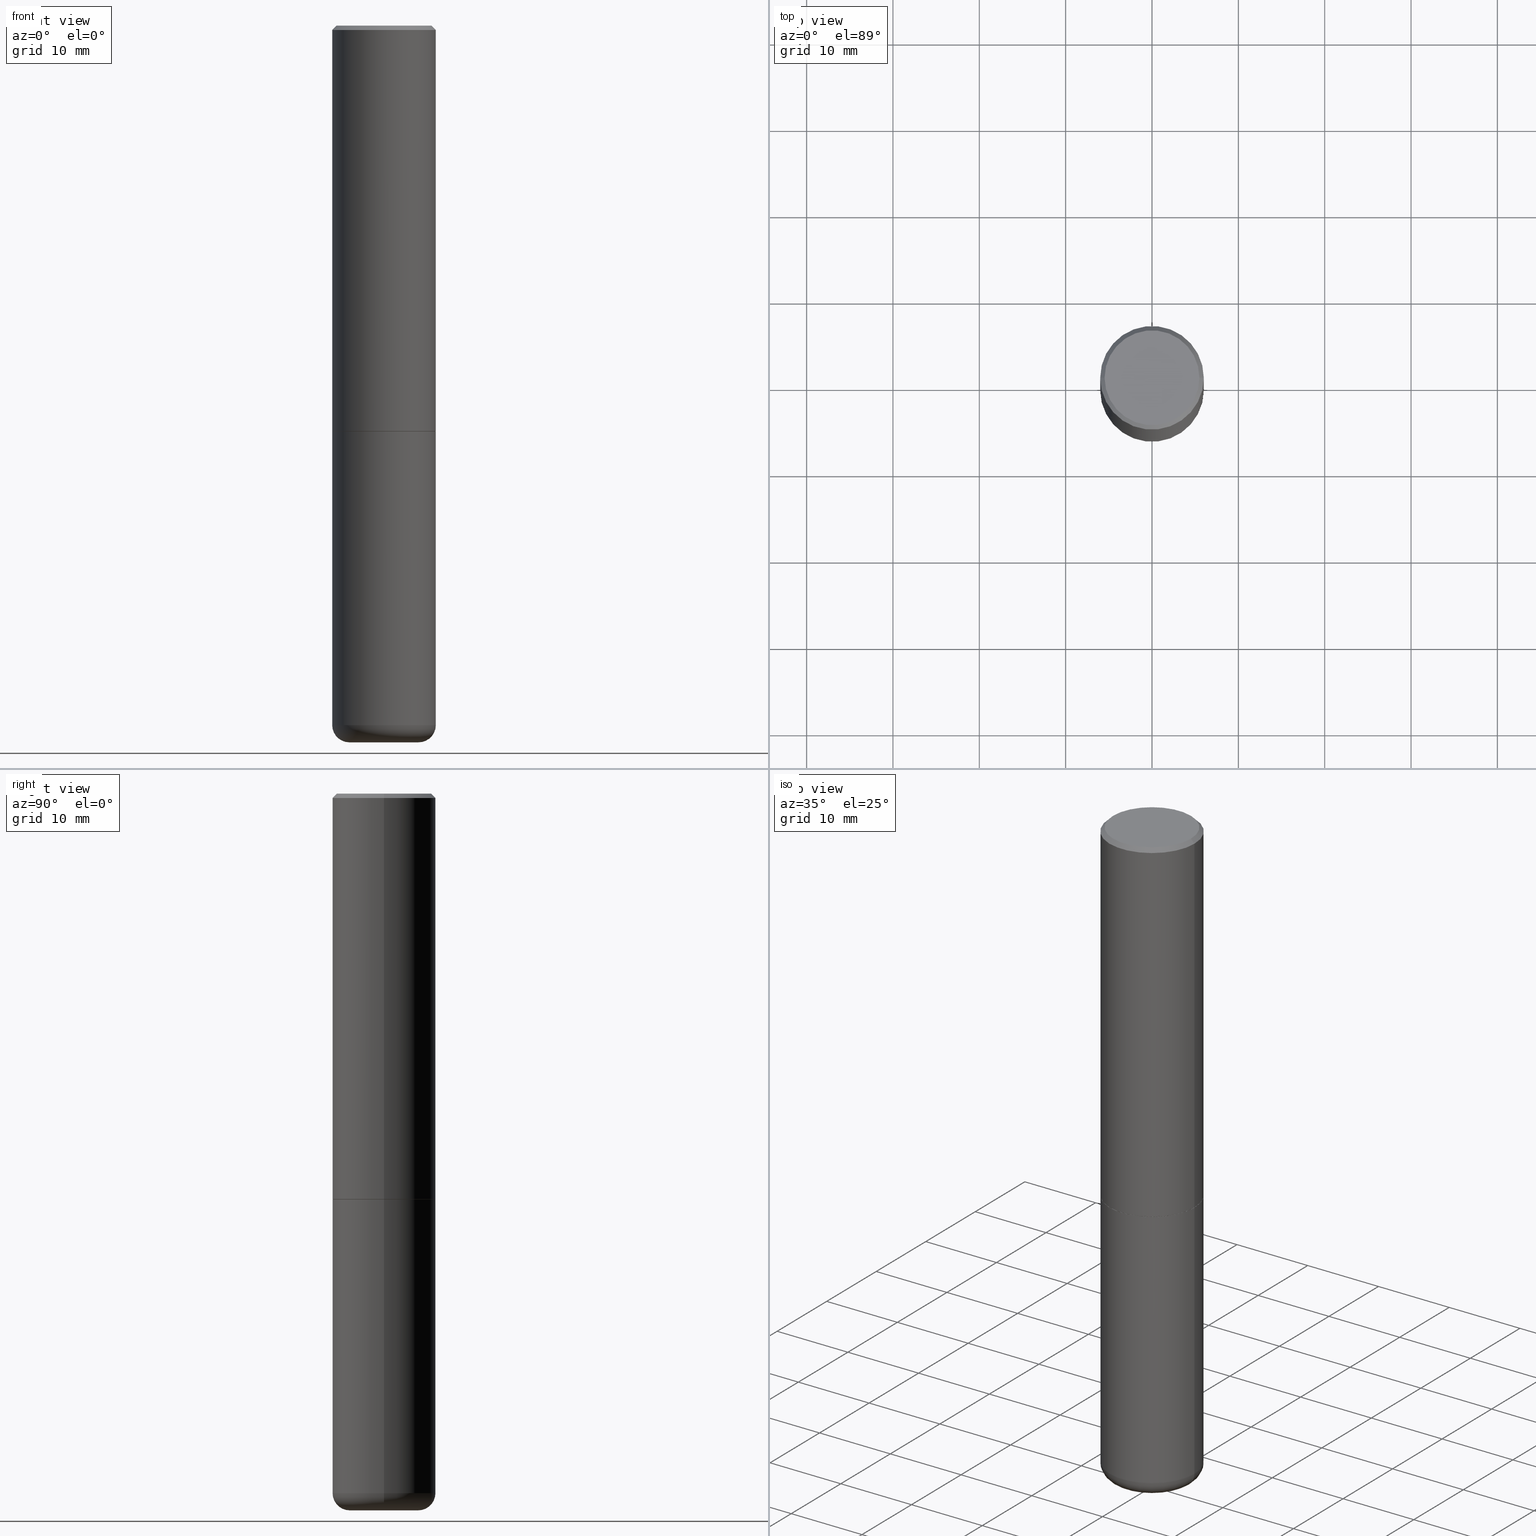
[diagram: canonical four-view strip — front | top / right | iso, engineering-drawing reading convention]
A machine part, canonical four-view strip (front | top / right | iso — engineering-drawing reading convention). The complete STEP part file that produces these views, byte-faithful:
ISO-10303-21;
HEADER;
FILE_DESCRIPTION (( 'STEP AP203' ),
    '1' );
FILE_NAME ('74705.STEP',
    '2024-05-02T19:14:25',
    ( '' ),
    ( '' ),
    'SwSTEP 2.0',
    'SolidWorks 2023',
    '' );
FILE_SCHEMA (( 'CONFIG_CONTROL_DESIGN' ));
ENDSEC;

DATA;
#1 = ORIENTED_EDGE ( 'NONE', *, *, #175, .F. ) ;
#2 = ADVANCED_FACE ( 'NONE', ( #153 ), #278, .T. ) ;
#3 = VERTEX_POINT ( 'NONE', #355 ) ;
#4 = CIRCLE ( 'NONE', #230, 0.07869999999999993667 ) ;
#5 = DIRECTION ( 'NONE',  ( -2.445468806185136597E-29, 3.491481338843145583E-15, 1.000000000000000000 ) ) ;
#6 = CARTESIAN_POINT ( 'NONE',  ( 4.890937612370285420E-31, -6.982962677686308865E-17, -0.02000000000000005246 ) ) ;
#7 = PLANE ( 'NONE',  #177 ) ;
#8 = AXIS2_PLACEMENT_3D ( 'NONE', #159, #357, #162 ) ;
#9 = CARTESIAN_POINT ( 'NONE',  ( 4.522650010158792351E-29, -6.457145588056513780E-15, -1.849400000000000155 ) ) ;
#10 = CC_DESIGN_PERSON_AND_ORGANIZATION_ASSIGNMENT ( #169, #26, ( #120 ) ) ;
#11 = DIRECTION ( 'NONE',  ( 2.438088387897960049E-29, -3.491481338843145188E-15, -1.000000000000000000 ) ) ;
#12 = LINE ( 'NONE', #210, #63 ) ;
#13 = CARTESIAN_POINT ( 'NONE',  ( 7.991058417971171713E-29, -1.140911357093774644E-14, -3.267700000000000049 ) ) ;
#14 = DIRECTION ( 'NONE',  ( 1.000000000000000000, -6.982962677686264344E-15, 0.000000000000000000 ) ) ;
#15 = FACE_OUTER_BOUND ( 'NONE', #376, .T. ) ;
#16 = ADVANCED_FACE ( 'NONE', ( #250 ), #98, .T. ) ;
#17 = AXIS2_PLACEMENT_3D ( 'NONE', #203, #81, #338 ) ;
#18 = APPROVAL_ROLE ( '' ) ;
#19 = DIRECTION ( 'NONE',  ( -2.445468806185136597E-29, 3.491481338843145583E-15, 1.000000000000000000 ) ) ;
#20 = CARTESIAN_POINT ( 'NONE',  ( 4.525095478964977394E-29, -6.460637069395357576E-15, -1.850400000000000267 ) ) ;
#21 = COORDINATED_UNIVERSAL_TIME_OFFSET ( 5, 0, .BEHIND. ) ;
#22 = AXIS2_PLACEMENT_3D ( 'NONE', #299, #400, #103 ) ;
#23 = EDGE_LOOP ( 'NONE', ( #178, #269, #140, #277 ) ) ;
#24 = PERSON_AND_ORGANIZATION_ROLE ( 'design_supplier' ) ;
#25 = VERTEX_POINT ( 'NONE', #34 ) ;
#26 = PERSON_AND_ORGANIZATION_ROLE ( 'creator' ) ;
#27 = ORIENTED_EDGE ( 'NONE', *, *, #315, .F. ) ;
#28 = ADVANCED_FACE ( 'NONE', ( #186 ), #294, .F. ) ;
#29 = ORIENTED_EDGE ( 'NONE', *, *, #271, .T. ) ;
#30 = AXIS2_PLACEMENT_3D ( 'NONE', #20, #262, #235 ) ;
#31 = EDGE_CURVE ( 'NONE', #25, #275, #394, .T. ) ;
#32 = DIRECTION ( 'NONE',  ( 2.445468806185136597E-29, -3.491481338843145583E-15, -1.000000000000000000 ) ) ;
#33 = AXIS2_PLACEMENT_3D ( 'NONE', #165, #19, #14 ) ;
#34 = CARTESIAN_POINT ( 'NONE',  ( -0.2362000000000002431, -1.585185665551328595E-15, -1.849400000000000155 ) ) ;
#35 = EDGE_CURVE ( 'NONE', #123, #61, #201, .T. ) ;
#36 = DIRECTION ( 'NONE',  ( -2.445468806185136597E-29, 3.491481338843145583E-15, 1.000000000000000000 ) ) ;
#37 = CARTESIAN_POINT ( 'NONE',  ( 0.000000000000000000, 0.000000000000000000, 0.000000000000000000 ) ) ;
#38 = APPROVAL ( #261, 'UNSPECIFIED' ) ;
#39 = FACE_OUTER_BOUND ( 'NONE', #314, .T. ) ;
#40 = DIRECTION ( 'NONE',  ( 1.000000000000000000, -6.982962677686264344E-15, 0.000000000000000000 ) ) ;
#41 = CLOSED_SHELL ( 'NONE', ( #237, #2, #390, #126, #228, #96, #408, #50 ) ) ;
#42 = LINE ( 'NONE', #46, #193 ) ;
#43 = LINE ( 'NONE', #166, #182 ) ;
#44 = EDGE_CURVE ( 'NONE', #275, #25, #202, .T. ) ;
#45 = PERSON_AND_ORGANIZATION ( #86, #117 ) ;
#46 = CARTESIAN_POINT ( 'NONE',  ( -0.2351999999999999924, -4.789440554887602190E-15, -1.850400000000000267 ) ) ;
#47 = CARTESIAN_POINT ( 'NONE',  ( 0.2351999999999999924, -8.103029891187166509E-15, -1.850400000000000267 ) ) ;
#48 = COORDINATED_UNIVERSAL_TIME_OFFSET ( 5, 0, .BEHIND. ) ;
#49 =( CONVERSION_BASED_UNIT ( 'INCH', #106 ) LENGTH_UNIT ( ) NAMED_UNIT ( #290 ) );
#50 = ADVANCED_FACE ( 'NONE', ( #396 ), #7, .F. ) ;
#51 = EDGE_CURVE ( 'NONE', #79, #180, #4, .T. ) ;
#52 = EDGE_CURVE ( 'NONE', #62, #212, #284, .T. ) ;
#53 = DIRECTION ( 'NONE',  ( 0.7071067811865957564, -2.468850131082761932E-15, 0.7071067811864992780 ) ) ;
#54 = ORIENTED_EDGE ( 'NONE', *, *, #308, .T. ) ;
#55 = PERSON_AND_ORGANIZATION ( #86, #117 ) ;
#56 = AXIS2_PLACEMENT_3D ( 'NONE', #6, #127, #97 ) ;
#57 = ORIENTED_EDGE ( 'NONE', *, *, #112, .T. ) ;
#58 = APPROVAL_PERSON_ORGANIZATION ( #331, #38, #141 ) ;
#59 = EDGE_CURVE ( 'NONE', #263, #205, #358, .T. ) ;
#60 = VERTEX_POINT ( 'NONE', #318 ) ;
#61 = VERTEX_POINT ( 'NONE', #389 ) ;
#62 = VERTEX_POINT ( 'NONE', #221 ) ;
#63 = VECTOR ( 'NONE', #266, 39.37007874015748143 ) ;
#64 = ADVANCED_FACE ( 'NONE', ( #361 ), #325, .T. ) ;
#65 = CYLINDRICAL_SURFACE ( 'NONE', #402, 0.2361999999999999933 ) ;
#66 = DIRECTION ( 'NONE',  ( -1.000000000000000000, 6.982962677686266711E-15, 0.000000000000000000 ) ) ;
#67 = AXIS2_PLACEMENT_3D ( 'NONE', #339, #204, #172 ) ;
#68 = DIRECTION ( 'NONE',  ( 1.000000000000000000, -6.982962677686266711E-15, 0.000000000000000000 ) ) ;
#69 = CARTESIAN_POINT ( 'NONE',  ( 4.525095478964977394E-29, -6.460637069395357576E-15, -1.850400000000000267 ) ) ;
#70 = CARTESIAN_POINT ( 'NONE',  ( 7.991058417971171713E-29, -1.140911357093774644E-14, -3.267700000000000049 ) ) ;
#71 = CARTESIAN_POINT ( 'NONE',  ( -0.1575000000000000011, -1.001522918074863550E-14, -3.189000000000000501 ) ) ;
#72 = AXIS2_PLACEMENT_3D ( 'NONE', #13, #134, #257 ) ;
#73 = LOCAL_TIME ( 15, 14, 25.00000000000000000, #405 ) ;
#74 = EDGE_CURVE ( 'NONE', #205, #263, #142, .T. ) ;
#75 = CARTESIAN_POINT ( 'NONE',  ( 0.2361999999999999378, -1.690279253850498377E-15, -0.02000000000000005246 ) ) ;
#76 = DIRECTION ( 'NONE',  ( -1.000000000000000000, 6.982962677686266711E-15, 0.000000000000000000 ) ) ;
#77 = AXIS2_PLACEMENT_3D ( 'NONE', #69, #191, #324 ) ;
#78 = DIRECTION ( 'NONE',  ( -2.445468806185136597E-29, 3.491481338843145583E-15, 1.000000000000000000 ) ) ;
#79 = VERTEX_POINT ( 'NONE', #223 ) ;
#80 = ORIENTED_EDGE ( 'NONE', *, *, #315, .T. ) ;
#81 = DIRECTION ( 'NONE',  ( 0.000000000000000000, 0.000000000000000000, 1.000000000000000000 ) ) ;
#82 =( GEOMETRIC_REPRESENTATION_CONTEXT ( 3 ) GLOBAL_UNCERTAINTY_ASSIGNED_CONTEXT ( ( #187 ) ) GLOBAL_UNIT_ASSIGNED_CONTEXT ( ( #49, #137, #368 ) ) REPRESENTATION_CONTEXT ( 'NONE', 'WORKASPACE' ) );
#83 = ORIENTED_EDGE ( 'NONE', *, *, #387, .T. ) ;
#84 = DATE_TIME_ROLE ( 'creation_date' ) ;
#85 = ORIENTED_EDGE ( 'NONE', *, *, #133, .F. ) ;
#86 = PERSON ( 'UNSPECIFIED', 'UNSPECIFIED', 'UNSPECIFIED', ('UNSPECIFIED'), ('UNSPECIFIED'), ('UNSPECIFIED') ) ;
#87 = DIRECTION ( 'NONE',  ( -2.445468806185136597E-29, 3.491481338843145583E-15, 1.000000000000000000 ) ) ;
#88 = ORIENTED_EDGE ( 'NONE', *, *, #351, .F. ) ;
#89 = LINE ( 'NONE', #232, #292 ) ;
#90 = DATE_AND_TIME ( #386, #73 ) ;
#91 = AXIS2_PLACEMENT_3D ( 'NONE', #330, #196, #328 ) ;
#92 = AXIS2_PLACEMENT_3D ( 'NONE', #360, #87, #321 ) ;
#93 = DIRECTION ( 'NONE',  ( -2.445468806185136597E-29, 3.491481338843145583E-15, 1.000000000000000000 ) ) ;
#94 = CARTESIAN_POINT ( 'NONE',  ( 1.509716530915769140E-15, 0.2161999999999997535, -6.801592968811301598E-16 ) ) ;
#95 = DIRECTION ( 'NONE',  ( -2.445468806185136597E-29, 3.491481338843145583E-15, 1.000000000000000000 ) ) ;
#96 = ADVANCED_FACE ( 'NONE', ( #288 ), #183, .T. ) ;
#97 = DIRECTION ( 'NONE',  ( 1.000000000000000000, -6.982962677686266711E-15, 0.000000000000000000 ) ) ;
#98 = CYLINDRICAL_SURFACE ( 'NONE', #92, 0.2361999999999999933 ) ;
#99 = AXIS2_PLACEMENT_3D ( 'NONE', #246, #392, #121 ) ;
#100 = CARTESIAN_POINT ( 'NONE',  ( 4.890937612370285420E-31, -6.982962677686308865E-17, -0.02000000000000005246 ) ) ;
#101 = DIRECTION ( 'NONE',  ( 1.000000000000000000, -6.982962677686266711E-15, 4.883557194083113462E-29 ) ) ;
#102 = DIRECTION ( 'NONE',  ( -2.445468806185136877E-29, 3.491481338843145188E-15, 1.000000000000000000 ) ) ;
#103 = DIRECTION ( 'NONE',  ( 1.000000000000000000, -6.982962677686265922E-15, 4.876176775795935793E-29 ) ) ;
#104 = CIRCLE ( 'NONE', #8, 0.1575000000000000011 ) ;
#105 = AXIS2_PLACEMENT_3D ( 'NONE', #129, #251, #226 ) ;
#106 = LENGTH_MEASURE_WITH_UNIT ( LENGTH_MEASURE( 0.02539999999999999897 ), #406 );
#107 = DIRECTION ( 'NONE',  ( -2.445468806185136877E-29, 3.491481338843145188E-15, 1.000000000000000000 ) ) ;
#108 = CALENDAR_DATE ( 2024, 2, 5 ) ;
#109 = CARTESIAN_POINT ( 'NONE',  ( -0.2361999999999999655, -9.456032047705438285E-15, -3.189000000000000501 ) ) ;
#110 = CC_DESIGN_SECURITY_CLASSIFICATION ( #242, ( #176 ) ) ;
#111 = EDGE_LOOP ( 'NONE', ( #279, #341, #415, #88 ) ) ;
#112 = EDGE_CURVE ( 'NONE', #412, #60, #371, .T. ) ;
#113 = ORIENTED_EDGE ( 'NONE', *, *, #271, .F. ) ;
#114 = ADVANCED_FACE ( 'NONE', ( #322 ), #65, .T. ) ;
#115 = EDGE_LOOP ( 'NONE', ( #211, #343, #289, #244 ) ) ;
#116 = COORDINATED_UNIVERSAL_TIME_OFFSET ( 5, 0, .BEHIND. ) ;
#117 = ORGANIZATION ( 'UNSPECIFIED', 'UNSPECIFIED', '' ) ;
#118 = ORIENTED_EDGE ( 'NONE', *, *, #35, .F. ) ;
#119 = ORIENTED_EDGE ( 'NONE', *, *, #418, .T. ) ;
#120 = PRODUCT_DEFINITION ( 'UNKNOWN', '', #176, #311 ) ;
#121 = DIRECTION ( 'NONE',  ( -1.000000000000000000, 6.982962677686265922E-15, -4.876176775795935793E-29 ) ) ;
#122 = AXIS2_PLACEMENT_3D ( 'NONE', #407, #233, #369 ) ;
#123 = VERTEX_POINT ( 'NONE', #216 ) ;
#124 = FACE_OUTER_BOUND ( 'NONE', #377, .T. ) ;
#125 = ORIENTED_EDGE ( 'NONE', *, *, #317, .F. ) ;
#126 = ADVANCED_FACE ( 'NONE', ( #124 ), #334, .T. ) ;
#127 = DIRECTION ( 'NONE',  ( -2.445468806185136597E-29, 3.491481338843145583E-15, 1.000000000000000000 ) ) ;
#128 = CC_DESIGN_PERSON_AND_ORGANIZATION_ASSIGNMENT ( #55, #24, ( #176 ) ) ;
#129 = CARTESIAN_POINT ( 'NONE',  ( 4.525095478964977394E-29, -6.460637069395357576E-15, -1.850400000000000267 ) ) ;
#130 = AXIS2_PLACEMENT_3D ( 'NONE', #218, #192, #40 ) ;
#131 = CIRCLE ( 'NONE', #122, 0.2161999999999997535 ) ;
#132 = DIRECTION ( 'NONE',  ( -1.000000000000000000, 6.982962677686265922E-15, -4.876176775795935793E-29 ) ) ;
#133 = EDGE_CURVE ( 'NONE', #412, #79, #104, .T. ) ;
#134 = DIRECTION ( 'NONE',  ( -2.445468806185136597E-29, 3.491481338843145583E-15, 1.000000000000000000 ) ) ;
#135 = CIRCLE ( 'NONE', #258, 0.2361999999999999933 ) ;
#136 = CALENDAR_DATE ( 2024, 2, 5 ) ;
#137 =( NAMED_UNIT ( * ) PLANE_ANGLE_UNIT ( ) SI_UNIT ( $, .RADIAN. ) );
#138 = DATE_AND_TIME ( #179, #276 ) ;
#139 = CARTESIAN_POINT ( 'NONE',  ( 7.798600022924401307E-29, -1.113433398957079310E-14, -3.189000000000000501 ) ) ;
#140 = ORIENTED_EDGE ( 'NONE', *, *, #44, .F. ) ;
#141 = APPROVAL_ROLE ( '' ) ;
#142 = CIRCLE ( 'NONE', #281, 0.2361999999999999378 ) ;
#143 = EDGE_CURVE ( 'NONE', #60, #62, #291, .T. ) ;
#144 = ORIENTED_EDGE ( 'NONE', *, *, #274, .F. ) ;
#145 = SECURITY_CLASSIFICATION_LEVEL ( 'unclassified' ) ;
#146 = CC_DESIGN_PERSON_AND_ORGANIZATION_ASSIGNMENT ( #335, #372, ( #333 ) ) ;
#147 = MANIFOLD_SOLID_BREP ( 'Body-Move/Copy2[1]', #380 ) ;
#148 = ORIENTED_EDGE ( 'NONE', *, *, #52, .T. ) ;
#149 = DATE_AND_TIME ( #413, #253 ) ;
#150 = ORIENTED_EDGE ( 'NONE', *, *, #190, .T. ) ;
#151 = CIRCLE ( 'NONE', #379, 0.2361999999999999933 ) ;
#152 = ORIENTED_EDGE ( 'NONE', *, *, #340, .T. ) ;
#153 = FACE_OUTER_BOUND ( 'NONE', #209, .T. ) ;
#154 = ORIENTED_EDGE ( 'NONE', *, *, #59, .F. ) ;
#155 = DIRECTION ( 'NONE',  ( 2.438088387897960049E-29, -3.491481338843145188E-15, -1.000000000000000000 ) ) ;
#156 = DIRECTION ( 'NONE',  ( 1.000000000000000000, -6.982962677686266711E-15, 4.876176775795936353E-29 ) ) ;
#157 = ORIENTED_EDGE ( 'NONE', *, *, #143, .T. ) ;
#158 = DIRECTION ( 'NONE',  ( -1.000000000000000000, 7.105427357600997914E-15, 0.000000000000000000 ) ) ;
#159 = CARTESIAN_POINT ( 'NONE',  ( 7.991058417971171713E-29, -1.140911357093774644E-14, -3.267700000000000049 ) ) ;
#160 = VECTOR ( 'NONE', #53, 39.37007874015748143 ) ;
#161 = PLANE ( 'NONE',  #384 ) ;
#162 = DIRECTION ( 'NONE',  ( 1.000000000000000000, -6.982962677686261977E-15, 0.000000000000000000 ) ) ;
#163 = CC_DESIGN_DATE_AND_TIME_ASSIGNMENT ( #149, #241, ( #242 ) ) ;
#164 = PLANE ( 'NONE',  #22 ) ;
#165 = CARTESIAN_POINT ( 'NONE',  ( 4.525095478964977394E-29, -6.460637069395357576E-15, -1.850400000000000267 ) ) ;
#166 = CARTESIAN_POINT ( 'NONE',  ( 0.2361999999999999378, -1.690279253850498377E-15, -0.02000000000000005246 ) ) ;
#167 = DIRECTION ( 'NONE',  ( 1.000000000000000000, -6.982962677686265133E-15, 0.000000000000000000 ) ) ;
#168 = APPROVAL_PERSON_ORGANIZATION ( #344, #302, #199 ) ;
#169 = PERSON_AND_ORGANIZATION ( #86, #117 ) ;
#170 = DIRECTION ( 'NONE',  ( -2.445468806185136597E-29, 3.491481338843145583E-15, 1.000000000000000000 ) ) ;
#171 = CARTESIAN_POINT ( 'NONE',  ( 0.2161999999999997535, -1.586759460484350805E-15, 1.493979371535252139E-16 ) ) ;
#172 = DIRECTION ( 'NONE',  ( 1.000000000000000000, -6.982962677686265133E-15, 0.000000000000000000 ) ) ;
#173 = EDGE_LOOP ( 'NONE', ( #381, #304, #217, #215 ) ) ;
#174 = PERSON_AND_ORGANIZATION_ROLE ( 'creator' ) ;
#175 = EDGE_CURVE ( 'NONE', #272, #205, #43, .T. ) ;
#176 = PRODUCT_DEFINITION_FORMATION_WITH_SPECIFIED_SOURCE ( 'ANY', '', #333, .NOT_KNOWN. ) ;
#177 = AXIS2_PLACEMENT_3D ( 'NONE', #94, #155, #132 ) ;
#178 = ORIENTED_EDGE ( 'NONE', *, *, #274, .T. ) ;
#179 = CALENDAR_DATE ( 2024, 2, 5 ) ;
#180 = VERTEX_POINT ( 'NONE', #109 ) ;
#181 = ORIENTED_EDGE ( 'NONE', *, *, #351, .T. ) ;
#182 = VECTOR ( 'NONE', #337, 39.37007874015748143 ) ;
#183 = CONICAL_SURFACE ( 'NONE', #77, 0.2351999999999999924, 0.7853981633975165577 ) ;
#184 = ORIENTED_EDGE ( 'NONE', *, *, #190, .F. ) ;
#185 = CARTESIAN_POINT ( 'NONE',  ( 4.890937612370285420E-31, -6.982962677686308865E-17, -0.02000000000000005246 ) ) ;
#186 = FACE_OUTER_BOUND ( 'NONE', #348, .T. ) ;
#187 = UNCERTAINTY_MEASURE_WITH_UNIT (LENGTH_MEASURE( 1.000000000000000082E-05 ), #49, 'distance_accuracy_value', 'NONE');
#188 = AXIS2_PLACEMENT_3D ( 'NONE', #364, #170, #194 ) ;
#189 = DIRECTION ( 'NONE',  ( -2.445468806185136597E-29, 3.491481338843145583E-15, 1.000000000000000000 ) ) ;
#190 = EDGE_CURVE ( 'NONE', #212, #62, #151, .T. ) ;
#191 = DIRECTION ( 'NONE',  ( -2.445468806185136597E-29, 3.491481338843145583E-15, 1.000000000000000000 ) ) ;
#192 = DIRECTION ( 'NONE',  ( -2.445468806185136597E-29, 3.491481338843145583E-15, 1.000000000000000000 ) ) ;
#193 = VECTOR ( 'NONE', #297, 39.37007874015748143 ) ;
#194 = DIRECTION ( 'NONE',  ( 1.000000000000000000, -6.982962677686267499E-15, 4.881916136609867620E-29 ) ) ;
#195 = DIRECTION ( 'NONE',  ( -2.445468806185136877E-29, 3.491481338843145188E-15, 1.000000000000000000 ) ) ;
#196 = DIRECTION ( 'NONE',  ( -2.445468806185136597E-29, 3.491481338843145583E-15, 1.000000000000000000 ) ) ;
#197 = FACE_OUTER_BOUND ( 'NONE', #312, .T. ) ;
#198 = APPROVAL ( #298, 'UNSPECIFIED' ) ;
#199 = APPROVAL_ROLE ( '' ) ;
#200 = FACE_OUTER_BOUND ( 'NONE', #111, .T. ) ;
#201 = CIRCLE ( 'NONE', #130, 0.2351999999999999924 ) ;
#202 = CIRCLE ( 'NONE', #307, 0.2362000000000002153 ) ;
#203 = CARTESIAN_POINT ( 'NONE',  ( 0.000000000000000000, 0.000000000000000000, 0.000000000000000000 ) ) ;
#204 = DIRECTION ( 'NONE',  ( -2.445468806185136597E-29, 3.491481338843145583E-15, 1.000000000000000000 ) ) ;
#205 = VERTEX_POINT ( 'NONE', #75 ) ;
#206 = DATE_AND_TIME ( #108, #282 ) ;
#207 = EDGE_LOOP ( 'NONE', ( #54, #83, #374, #416 ) ) ;
#208 = AXIS2_PLACEMENT_3D ( 'NONE', #185, #32, #66 ) ;
#209 = EDGE_LOOP ( 'NONE', ( #240, #383, #236, #27 ) ) ;
#210 = CARTESIAN_POINT ( 'NONE',  ( 0.2362000000000000766, -1.649375784469496722E-15, 1.151752954443000368E-29 ) ) ;
#211 = ORIENTED_EDGE ( 'NONE', *, *, #397, .F. ) ;
#212 = VERTEX_POINT ( 'NONE', #296 ) ;
#213 = CONICAL_SURFACE ( 'NONE', #349, 0.2361999999999999378, 0.7853981633974473908 ) ;
#214 = CC_DESIGN_APPROVAL ( #198, ( #242 ) ) ;
#215 = ORIENTED_EDGE ( 'NONE', *, *, #112, .F. ) ;
#216 = CARTESIAN_POINT ( 'NONE',  ( -0.2351999999999999924, -4.784142100539378999E-15, -1.850400000000000267 ) ) ;
#217 = ORIENTED_EDGE ( 'NONE', *, *, #308, .F. ) ;
#218 = CARTESIAN_POINT ( 'NONE',  ( 4.525095478964977394E-29, -6.460637069395357576E-15, -1.850400000000000267 ) ) ;
#219 = SHAPE_DEFINITION_REPRESENTATION ( #313, #256 ) ;
#220 = DIRECTION ( 'NONE',  ( 1.000000000000000000, -6.982962677686266711E-15, 4.876176775795935793E-29 ) ) ;
#221 = CARTESIAN_POINT ( 'NONE',  ( 0.2361999999999999933, -8.110012853864854101E-15, -1.850400000000000267 ) ) ;
#222 = CC_DESIGN_APPROVAL ( #302, ( #120 ) ) ;
#223 = CARTESIAN_POINT ( 'NONE',  ( -0.1575000000000000011, -9.873020404910514350E-15, -3.267700000000000049 ) ) ;
#224 = EDGE_CURVE ( 'NONE', #61, #275, #301, .T. ) ;
#225 = CC_DESIGN_PERSON_AND_ORGANIZATION_ASSIGNMENT ( #45, #174, ( #176 ) ) ;
#226 = DIRECTION ( 'NONE',  ( 1.000000000000000000, -6.982962677686269077E-15, 0.000000000000000000 ) ) ;
#227 = CARTESIAN_POINT ( 'NONE',  ( 4.890937612370285420E-31, -6.982962677686308865E-17, -0.02000000000000005246 ) ) ;
#228 = ADVANCED_FACE ( 'NONE', ( #399 ), #231, .T. ) ;
#229 = TOROIDAL_SURFACE ( 'NONE', #410, 0.1575000000000000011, 0.07869999999999995055 ) ;
#230 = AXIS2_PLACEMENT_3D ( 'NONE', #71, #248, #158 ) ;
#231 = CYLINDRICAL_SURFACE ( 'NONE', #91, 0.2362000000000000766 ) ;
#232 = CARTESIAN_POINT ( 'NONE',  ( -0.2362000000000000766, 1.678301941865357183E-15, -1.161852468318209177E-29 ) ) ;
#233 = DIRECTION ( 'NONE',  ( -2.445468806185136597E-29, 3.491481338843145583E-15, 1.000000000000000000 ) ) ;
#234 = CIRCLE ( 'NONE', #67, 0.2361999999999999933 ) ;
#235 = DIRECTION ( 'NONE',  ( 1.000000000000000000, -6.982962677686264344E-15, 0.000000000000000000 ) ) ;
#236 = ORIENTED_EDGE ( 'NONE', *, *, #74, .F. ) ;
#237 = ADVANCED_FACE ( 'NONE', ( #300 ), #393, .T. ) ;
#238 = CC_DESIGN_DATE_AND_TIME_ASSIGNMENT ( #138, #84, ( #120 ) ) ;
#239 = EDGE_LOOP ( 'NONE', ( #316, #346, #157, #184 ) ) ;
#240 = ORIENTED_EDGE ( 'NONE', *, *, #44, .T. ) ;
#241 = DATE_TIME_ROLE ( 'classification_date' ) ;
#242 = SECURITY_CLASSIFICATION ( '', '', #145 ) ;
#243 = EDGE_LOOP ( 'NONE', ( #125, #411, #80, #154 ) ) ;
#244 = ORIENTED_EDGE ( 'NONE', *, *, #31, .F. ) ;
#245 = ORIENTED_EDGE ( 'NONE', *, *, #59, .T. ) ;
#246 = CARTESIAN_POINT ( 'NONE',  ( 4.525095478964977394E-29, -6.460637069395357576E-15, -1.850400000000000267 ) ) ;
#247 = CIRCLE ( 'NONE', #72, 0.1575000000000000011 ) ;
#248 = DIRECTION ( 'NONE',  ( 7.105427357601001859E-15, 1.000000000000000000, -3.491481338843145583E-15 ) ) ;
#249 = CARTESIAN_POINT ( 'NONE',  ( 7.798600022924401307E-29, -1.113433398957079310E-14, -3.189000000000000501 ) ) ;
#250 = FACE_OUTER_BOUND ( 'NONE', #207, .T. ) ;
#251 = DIRECTION ( 'NONE',  ( -2.445468806185136597E-29, 3.491481338843145583E-15, 1.000000000000000000 ) ) ;
#252 = CIRCLE ( 'NONE', #188, 0.2161999999999997535 ) ;
#253 = LOCAL_TIME ( 15, 14, 25.00000000000000000, #116 ) ;
#254 = CARTESIAN_POINT ( 'NONE',  ( 4.522650010158792351E-29, -6.457145588056513780E-15, -1.849400000000000155 ) ) ;
#255 = DIRECTION ( 'NONE',  ( -2.445468806185136597E-29, 3.491481338843145583E-15, 1.000000000000000000 ) ) ;
#256 = ADVANCED_BREP_SHAPE_REPRESENTATION ( '74705', ( #147, #285, #17 ), #82 ) ;
#257 = DIRECTION ( 'NONE',  ( 1.000000000000000000, -6.982962677686261977E-15, 0.000000000000000000 ) ) ;
#258 = AXIS2_PLACEMENT_3D ( 'NONE', #403, #336, #167 ) ;
#259 = APPROVAL_STATUS ( 'not_yet_approved' ) ;
#260 = CARTESIAN_POINT ( 'NONE',  ( -0.2361999999999999378, 1.579546157692632635E-15, -0.02000000000000005246 ) ) ;
#261 = APPROVAL_STATUS ( 'not_yet_approved' ) ;
#262 = DIRECTION ( 'NONE',  ( -2.445468806185136597E-29, 3.491481338843145583E-15, 1.000000000000000000 ) ) ;
#263 = VERTEX_POINT ( 'NONE', #260 ) ;
#264 = DATE_AND_TIME ( #136, #417 ) ;
#265 = VECTOR ( 'NONE', #102, 39.37007874015748143 ) ;
#266 = DIRECTION ( 'NONE',  ( -2.445468806185136877E-29, 3.491481338843145188E-15, 1.000000000000000000 ) ) ;
#267 = CC_DESIGN_PERSON_AND_ORGANIZATION_ASSIGNMENT ( #310, #270, ( #242 ) ) ;
#268 = AXIS2_PLACEMENT_3D ( 'NONE', #354, #95, #220 ) ;
#269 = ORIENTED_EDGE ( 'NONE', *, *, #397, .T. ) ;
#270 = PERSON_AND_ORGANIZATION_ROLE ( 'classification_officer' ) ;
#271 = EDGE_CURVE ( 'NONE', #3, #272, #131, .T. ) ;
#272 = VERTEX_POINT ( 'NONE', #171 ) ;
#273 = APPROVAL_DATE_TIME ( #206, #38 ) ;
#274 = EDGE_CURVE ( 'NONE', #61, #123, #365, .T. ) ;
#275 = VERTEX_POINT ( 'NONE', #373 ) ;
#276 = LOCAL_TIME ( 15, 14, 25.00000000000000000, #21 ) ;
#277 = ORIENTED_EDGE ( 'NONE', *, *, #224, .F. ) ;
#278 = CYLINDRICAL_SURFACE ( 'NONE', #268, 0.2362000000000000766 ) ;
#279 = ORIENTED_EDGE ( 'NONE', *, *, #340, .F. ) ;
#280 = CARTESIAN_POINT ( 'NONE',  ( 0.1575000000000000011, -1.223415061130637979E-14, -3.189000000000000501 ) ) ;
#281 = AXIS2_PLACEMENT_3D ( 'NONE', #100, #189, #363 ) ;
#282 = LOCAL_TIME ( 15, 14, 25.00000000000000000, #375 ) ;
#283 = EDGE_LOOP ( 'NONE', ( #29, #152 ) ) ;
#284 = CIRCLE ( 'NONE', #105, 0.2361999999999999933 ) ;
#285 = MANIFOLD_SOLID_BREP ( 'Body-Move/Copy2[2]', #41 ) ;
#286 = DIRECTION ( 'NONE',  ( -2.445468806185136597E-29, 3.491481338843145583E-15, 1.000000000000000000 ) ) ;
#287 = APPLICATION_PROTOCOL_DEFINITION ( 'international standard', 'config_control_design', 1994, #414 ) ;
#288 = FACE_OUTER_BOUND ( 'NONE', #115, .T. ) ;
#289 = ORIENTED_EDGE ( 'NONE', *, *, #224, .T. ) ;
#290 = DIMENSIONAL_EXPONENTS ( 1.000000000000000000, 0.000000000000000000, 0.000000000000000000, 0.000000000000000000, 0.000000000000000000, 0.000000000000000000, 0.000000000000000000 ) ;
#291 = LINE ( 'NONE', #319, #370 ) ;
#292 = VECTOR ( 'NONE', #195, 39.37007874015748143 ) ;
#293 = LINE ( 'NONE', #367, #345 ) ;
#294 = PLANE ( 'NONE',  #99 ) ;
#295 = CARTESIAN_POINT ( 'NONE',  ( 0.1575000000000000011, -1.250893019267333313E-14, -3.267700000000000049 ) ) ;
#296 = CARTESIAN_POINT ( 'NONE',  ( -0.2361999999999999933, -7.119183587617718156E-15, -1.850400000000000267 ) ) ;
#297 = DIRECTION ( 'NONE',  ( -0.7071067811865957564, 7.493145998870527710E-15, 0.7071067811864992780 ) ) ;
#298 = APPROVAL_STATUS ( 'not_yet_approved' ) ;
#299 = CARTESIAN_POINT ( 'NONE',  ( 4.525095478964977394E-29, -6.460637069395357576E-15, -1.850400000000000267 ) ) ;
#300 = FACE_OUTER_BOUND ( 'NONE', #23, .T. ) ;
#301 = LINE ( 'NONE', #47, #160 ) ;
#302 = APPROVAL ( #259, 'UNSPECIFIED' ) ;
#303 = MECHANICAL_CONTEXT ( 'NONE', #414, 'mechanical' ) ;
#304 = ORIENTED_EDGE ( 'NONE', *, *, #51, .T. ) ;
#305 = APPROVAL_DATE_TIME ( #264, #302 ) ;
#306 = AXIS2_PLACEMENT_3D ( 'NONE', #280, #385, #391 ) ;
#307 = AXIS2_PLACEMENT_3D ( 'NONE', #9, #93, #352 ) ;
#308 = EDGE_CURVE ( 'NONE', #60, #180, #234, .T. ) ;
#309 = ORIENTED_EDGE ( 'NONE', *, *, #418, .F. ) ;
#310 = PERSON_AND_ORGANIZATION ( #86, #117 ) ;
#311 = DESIGN_CONTEXT ( 'detailed design', #395, 'design' ) ;
#312 = EDGE_LOOP ( 'NONE', ( #347, #119, #57, #388 ) ) ;
#313 = PRODUCT_DEFINITION_SHAPE ( 'NONE', 'NONE',  #120 ) ;
#314 = EDGE_LOOP ( 'NONE', ( #85, #309 ) ) ;
#315 = EDGE_CURVE ( 'NONE', #275, #205, #12, .T. ) ;
#316 = ORIENTED_EDGE ( 'NONE', *, *, #387, .F. ) ;
#317 = EDGE_CURVE ( 'NONE', #25, #263, #89, .T. ) ;
#318 = CARTESIAN_POINT ( 'NONE',  ( 0.2361999999999999655, -1.278370977404028805E-14, -3.189000000000000501 ) ) ;
#319 = CARTESIAN_POINT ( 'NONE',  ( 0.2361999999999999933, -1.649375784469496131E-15, 1.151752954443000088E-29 ) ) ;
#320 = AXIS2_PLACEMENT_3D ( 'NONE', #249, #36, #101 ) ;
#321 = DIRECTION ( 'NONE',  ( 1.000000000000000000, -6.982962677686266711E-15, 4.876176775795936353E-29 ) ) ;
#322 = FACE_OUTER_BOUND ( 'NONE', #239, .T. ) ;
#323 = DIRECTION ( 'NONE',  ( -0.7071067811865469066, 2.468850131082249961E-15, -0.7071067811865482389 ) ) ;
#324 = DIRECTION ( 'NONE',  ( 1.000000000000000000, -6.982962677686264344E-15, 0.000000000000000000 ) ) ;
#325 = TOROIDAL_SURFACE ( 'NONE', #320, 0.1575000000000000011, 0.07869999999999995055 ) ;
#326 = DIRECTION ( 'NONE',  ( 2.445468806185136597E-29, -3.491481338843145583E-15, -1.000000000000000000 ) ) ;
#327 = AXIS2_PLACEMENT_3D ( 'NONE', #254, #286, #68 ) ;
#328 = DIRECTION ( 'NONE',  ( 1.000000000000000000, -6.982962677686266711E-15, 4.876176775795935793E-29 ) ) ;
#329 = LINE ( 'NONE', #332, #265 ) ;
#330 = CARTESIAN_POINT ( 'NONE',  ( 0.000000000000000000, 0.000000000000000000, 0.000000000000000000 ) ) ;
#331 = PERSON_AND_ORGANIZATION ( #86, #117 ) ;
#332 = CARTESIAN_POINT ( 'NONE',  ( -0.2361999999999999933, 1.678301941865356591E-15, -1.161852468318208757E-29 ) ) ;
#333 = PRODUCT ( '74705', '74705', '', ( #303 ) ) ;
#334 = CONICAL_SURFACE ( 'NONE', #208, 0.2361999999999999378, 0.7853981633974473908 ) ;
#335 = PERSON_AND_ORGANIZATION ( #86, #117 ) ;
#336 = DIRECTION ( 'NONE',  ( -2.445468806185136597E-29, 3.491481338843145583E-15, 1.000000000000000000 ) ) ;
#337 = DIRECTION ( 'NONE',  ( 0.7071067811865469066, -7.319954787623254468E-15, -0.7071067811865482389 ) ) ;
#338 = DIRECTION ( 'NONE',  ( 1.000000000000000000, 0.000000000000000000, 0.000000000000000000 ) ) ;
#339 = CARTESIAN_POINT ( 'NONE',  ( 7.798600022924401307E-29, -1.113433398957079310E-14, -3.189000000000000501 ) ) ;
#340 = EDGE_CURVE ( 'NONE', #272, #3, #252, .T. ) ;
#341 = ORIENTED_EDGE ( 'NONE', *, *, #175, .T. ) ;
#342 = ADVANCED_FACE ( 'NONE', ( #197 ), #229, .T. ) ;
#343 = ORIENTED_EDGE ( 'NONE', *, *, #35, .T. ) ;
#344 = PERSON_AND_ORGANIZATION ( #86, #117 ) ;
#345 = VECTOR ( 'NONE', #323, 39.37007874015748143 ) ;
#346 = ORIENTED_EDGE ( 'NONE', *, *, #404, .T. ) ;
#347 = ORIENTED_EDGE ( 'NONE', *, *, #51, .F. ) ;
#348 = EDGE_LOOP ( 'NONE', ( #148, #150 ) ) ;
#349 = AXIS2_PLACEMENT_3D ( 'NONE', #227, #326, #76 ) ;
#350 = APPROVAL_PERSON_ORGANIZATION ( #378, #198, #18 ) ;
#351 = EDGE_CURVE ( 'NONE', #3, #263, #293, .T. ) ;
#352 = DIRECTION ( 'NONE',  ( 1.000000000000000000, -6.982962677686266711E-15, 0.000000000000000000 ) ) ;
#353 = APPROVAL_DATE_TIME ( #90, #198 ) ;
#354 = CARTESIAN_POINT ( 'NONE',  ( 0.000000000000000000, 0.000000000000000000, 0.000000000000000000 ) ) ;
#355 = CARTESIAN_POINT ( 'NONE',  ( -0.2161999999999997535, 1.544631344304201183E-15, 1.493979371535037174E-16 ) ) ;
#356 = PRODUCT_RELATED_PRODUCT_CATEGORY ( 'detail', '', ( #333 ) ) ;
#357 = DIRECTION ( 'NONE',  ( -2.445468806185136597E-29, 3.491481338843145583E-15, 1.000000000000000000 ) ) ;
#358 = CIRCLE ( 'NONE', #56, 0.2361999999999999378 ) ;
#359 = CC_DESIGN_APPROVAL ( #38, ( #176 ) ) ;
#360 = CARTESIAN_POINT ( 'NONE',  ( 0.000000000000000000, 0.000000000000000000, 0.000000000000000000 ) ) ;
#361 = FACE_OUTER_BOUND ( 'NONE', #173, .T. ) ;
#362 = DIRECTION ( 'NONE',  ( 1.000000000000000000, -6.982962677686266711E-15, 4.883557194083113462E-29 ) ) ;
#363 = DIRECTION ( 'NONE',  ( 1.000000000000000000, -6.982962677686266711E-15, 0.000000000000000000 ) ) ;
#364 = CARTESIAN_POINT ( 'NONE',  ( -3.653479950173268921E-45, 5.216201096331565337E-31, 1.493979371535143917E-16 ) ) ;
#365 = CIRCLE ( 'NONE', #30, 0.2351999999999999924 ) ;
#366 = DIRECTION ( 'NONE',  ( 1.000000000000000000, -6.982962677686269077E-15, 0.000000000000000000 ) ) ;
#367 = CARTESIAN_POINT ( 'NONE',  ( -0.2361999999999999378, 1.579546157692632635E-15, -0.02000000000000005246 ) ) ;
#368 =( NAMED_UNIT ( * ) SI_UNIT ( $, .STERADIAN. ) SOLID_ANGLE_UNIT ( ) );
#369 = DIRECTION ( 'NONE',  ( 1.000000000000000000, -6.982962677686267499E-15, 4.881916136609867620E-29 ) ) ;
#370 = VECTOR ( 'NONE', #107, 39.37007874015748143 ) ;
#371 = CIRCLE ( 'NONE', #306, 0.07869999999999993667 ) ;
#372 = PERSON_AND_ORGANIZATION_ROLE ( 'design_owner' ) ;
#373 = CARTESIAN_POINT ( 'NONE',  ( 0.2362000000000002153, -8.106521372526011094E-15, -1.849400000000000155 ) ) ;
#374 = ORIENTED_EDGE ( 'NONE', *, *, #52, .F. ) ;
#375 = COORDINATED_UNIVERSAL_TIME_OFFSET ( 5, 0, .BEHIND. ) ;
#376 = EDGE_LOOP ( 'NONE', ( #144, #118 ) ) ;
#377 = EDGE_LOOP ( 'NONE', ( #1, #113, #181, #245 ) ) ;
#378 = PERSON_AND_ORGANIZATION ( #86, #117 ) ;
#379 = AXIS2_PLACEMENT_3D ( 'NONE', #401, #78, #366 ) ;
#380 = CLOSED_SHELL ( 'NONE', ( #16, #64, #28, #114, #342, #382 ) ) ;
#381 = ORIENTED_EDGE ( 'NONE', *, *, #133, .T. ) ;
#382 = ADVANCED_FACE ( 'NONE', ( #39 ), #161, .T. ) ;
#383 = ORIENTED_EDGE ( 'NONE', *, *, #317, .T. ) ;
#384 = AXIS2_PLACEMENT_3D ( 'NONE', #70, #11, #398 ) ;
#385 = DIRECTION ( 'NONE',  ( -6.982962677686266711E-15, -1.000000000000000000, 3.491481338843145583E-15 ) ) ;
#386 = CALENDAR_DATE ( 2024, 2, 5 ) ;
#387 = EDGE_CURVE ( 'NONE', #180, #212, #329, .T. ) ;
#388 = ORIENTED_EDGE ( 'NONE', *, *, #404, .F. ) ;
#389 = CARTESIAN_POINT ( 'NONE',  ( 0.2351999999999999924, -8.103029891187166509E-15, -1.850400000000000267 ) ) ;
#390 = ADVANCED_FACE ( 'NONE', ( #200 ), #213, .T. ) ;
#391 = DIRECTION ( 'NONE',  ( 1.000000000000000000, -6.982962677686275388E-15, 0.000000000000000000 ) ) ;
#392 = DIRECTION ( 'NONE',  ( 2.438088387897960049E-29, -3.491481338843145188E-15, -1.000000000000000000 ) ) ;
#393 = CONICAL_SURFACE ( 'NONE', #33, 0.2351999999999999924, 0.7853981633975165577 ) ;
#394 = CIRCLE ( 'NONE', #327, 0.2362000000000002153 ) ;
#395 = APPLICATION_CONTEXT ( 'configuration controlled 3d designs of mechanical parts and assemblies' ) ;
#396 = FACE_OUTER_BOUND ( 'NONE', #283, .T. ) ;
#397 = EDGE_CURVE ( 'NONE', #123, #25, #42, .T. ) ;
#398 = DIRECTION ( 'NONE',  ( -1.000000000000000000, 6.982962677686265922E-15, -4.876176775795935793E-29 ) ) ;
#399 = FACE_OUTER_BOUND ( 'NONE', #243, .T. ) ;
#400 = DIRECTION ( 'NONE',  ( -2.438088387897960049E-29, 3.491481338843145188E-15, 1.000000000000000000 ) ) ;
#401 = CARTESIAN_POINT ( 'NONE',  ( 4.525095478964977394E-29, -6.460637069395357576E-15, -1.850400000000000267 ) ) ;
#402 = AXIS2_PLACEMENT_3D ( 'NONE', #37, #5, #156 ) ;
#403 = CARTESIAN_POINT ( 'NONE',  ( 7.798600022924401307E-29, -1.113433398957079310E-14, -3.189000000000000501 ) ) ;
#404 = EDGE_CURVE ( 'NONE', #180, #60, #135, .T. ) ;
#405 = COORDINATED_UNIVERSAL_TIME_OFFSET ( 5, 0, .BEHIND. ) ;
#406 =( LENGTH_UNIT ( ) NAMED_UNIT ( * ) SI_UNIT ( $, .METRE. ) );
#407 = CARTESIAN_POINT ( 'NONE',  ( -3.653479950173268921E-45, 5.216201096331565337E-31, 1.493979371535143917E-16 ) ) ;
#408 = ADVANCED_FACE ( 'NONE', ( #15 ), #164, .F. ) ;
#409 = APPLICATION_PROTOCOL_DEFINITION ( 'international standard', 'config_control_design', 1994, #395 ) ;
#410 = AXIS2_PLACEMENT_3D ( 'NONE', #139, #255, #362 ) ;
#411 = ORIENTED_EDGE ( 'NONE', *, *, #31, .T. ) ;
#412 = VERTEX_POINT ( 'NONE', #295 ) ;
#413 = CALENDAR_DATE ( 2024, 2, 5 ) ;
#414 = APPLICATION_CONTEXT ( 'configuration controlled 3d designs of mechanical parts and assemblies' ) ;
#415 = ORIENTED_EDGE ( 'NONE', *, *, #74, .T. ) ;
#416 = ORIENTED_EDGE ( 'NONE', *, *, #143, .F. ) ;
#417 = LOCAL_TIME ( 15, 14, 25.00000000000000000, #48 ) ;
#418 = EDGE_CURVE ( 'NONE', #79, #412, #247, .T. ) ;
ENDSEC;
END-ISO-10303-21;
